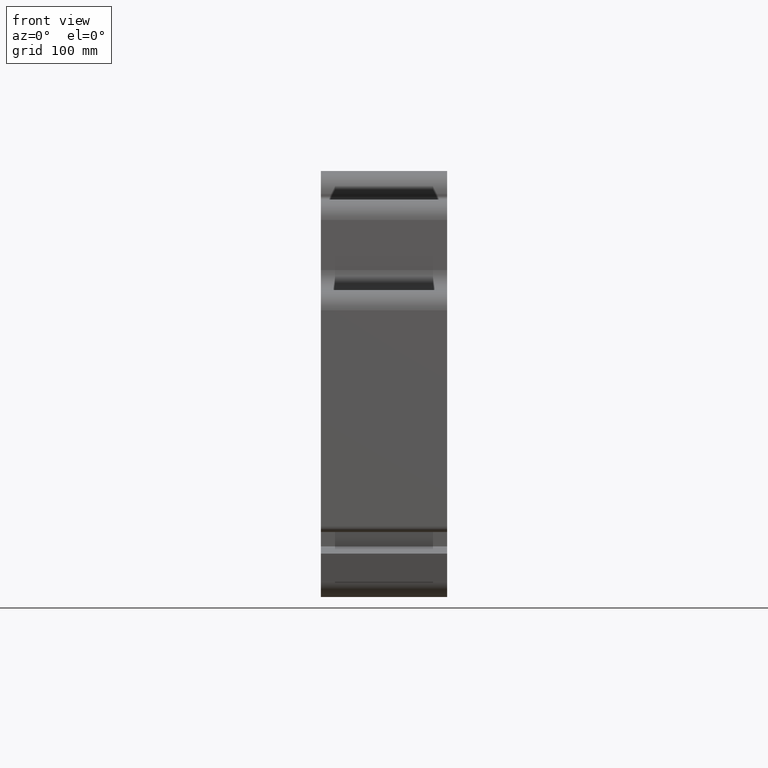
[diagram: clean part render]
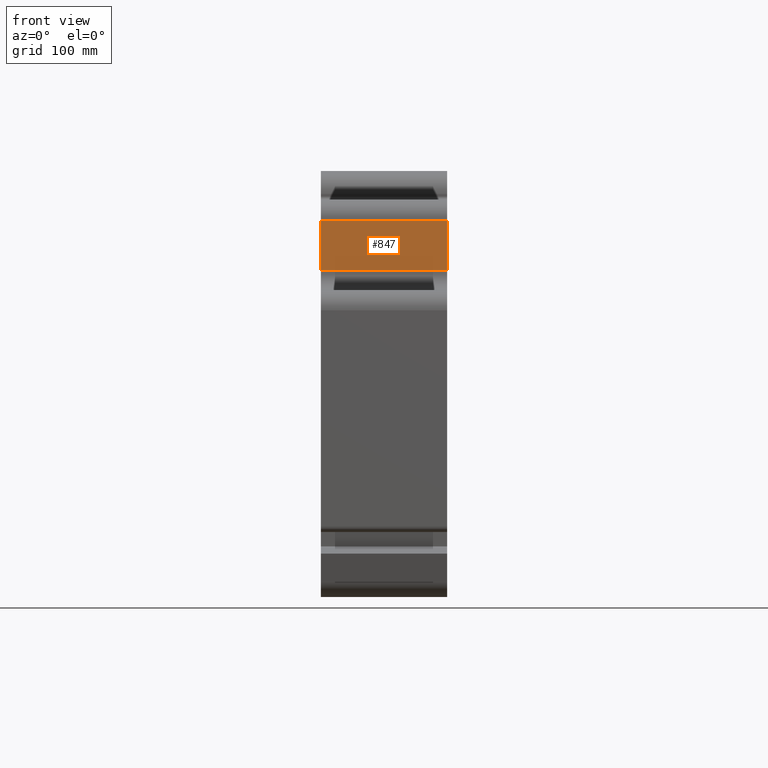
[diagram: same view with one face highlighted and labeled with its STEP entity id]
A machine part, front view. The second image highlights one B-rep face of the part: STEP entity #847.
In plain terms, the highlighted planar face has unit normal (0, -1, 0).
Its self-contained STEP definition (entity closure, byte-faithful):
#789=CARTESIAN_POINT('',(175.00000000000028,-403.19999999999982,403.00000000000023));
#790=VERTEX_POINT('',#789);
#798=CARTESIAN_POINT('',(0.0,-403.19999999999982,403.00000000000023));
#799=VERTEX_POINT('',#798);
#800=CARTESIAN_POINT('',(0.0,-403.19999999999982,403.00000000000023));
#801=DIRECTION('',(1.0,0.0,0.0));
#802=VECTOR('',#801,175.00000000000028);
#803=LINE('',#800,#802);
#804=EDGE_CURVE('',#799,#790,#803,.T.);
#817=CARTESIAN_POINT('',(0.0,-403.19999999999982,403.00000000000023));
#818=DIRECTION('',(0.0,-1.0,0.0));
#819=DIRECTION('',(0.0,0.0,-1.0));
#820=AXIS2_PLACEMENT_3D('',#817,#818,#819);
#821=PLANE('',#820);
#822=CARTESIAN_POINT('',(175.00000000000028,-403.20000000000022,472.0));
#823=VERTEX_POINT('',#822);
#824=CARTESIAN_POINT('',(175.00000000000028,-403.19999999999982,403.00000000000023));
#825=DIRECTION('',(0.0,0.0,1.0));
#826=VECTOR('',#825,68.999999999999773);
#827=LINE('',#824,#826);
#828=EDGE_CURVE('',#790,#823,#827,.T.);
#829=ORIENTED_EDGE('',*,*,#828,.T.);
#830=CARTESIAN_POINT('',(0.0,-403.20000000000022,472.0));
#831=VERTEX_POINT('',#830);
#832=CARTESIAN_POINT('',(0.0,-403.20000000000022,472.0));
#833=DIRECTION('',(1.0,0.0,0.0));
#834=VECTOR('',#833,175.00000000000028);
#835=LINE('',#832,#834);
#836=EDGE_CURVE('',#831,#823,#835,.T.);
#837=ORIENTED_EDGE('',*,*,#836,.F.);
#838=CARTESIAN_POINT('',(0.0,-403.19999999999982,403.00000000000023));
#839=DIRECTION('',(0.0,0.0,1.0));
#840=VECTOR('',#839,68.999999999999773);
#841=LINE('',#838,#840);
#842=EDGE_CURVE('',#799,#831,#841,.T.);
#843=ORIENTED_EDGE('',*,*,#842,.F.);
#844=ORIENTED_EDGE('',*,*,#804,.T.);
#845=EDGE_LOOP('',(#829,#837,#843,#844));
#846=FACE_OUTER_BOUND('',#845,.T.);
#847=ADVANCED_FACE('',(#846),#821,.T.);